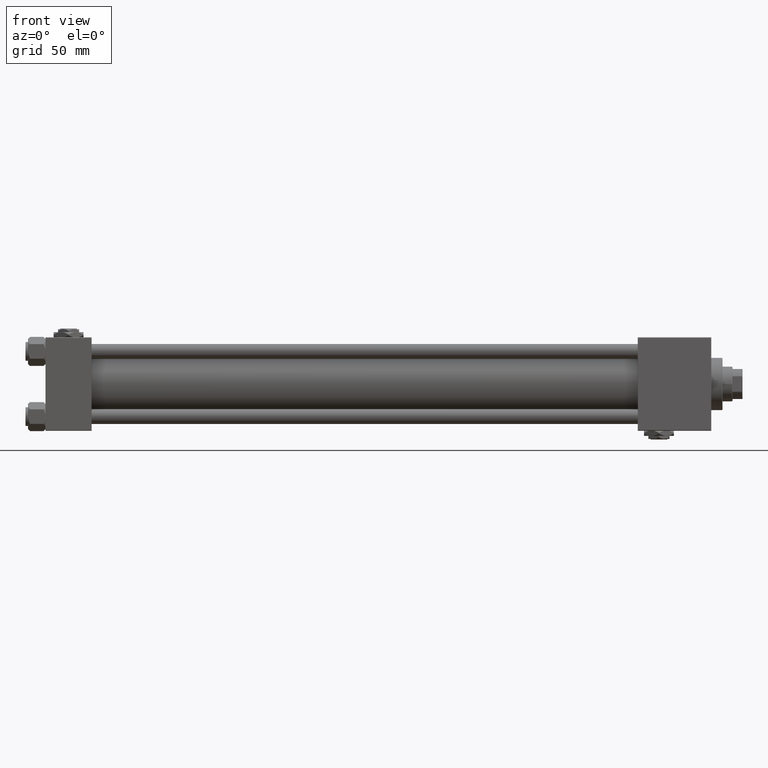
[diagram: clean part render]
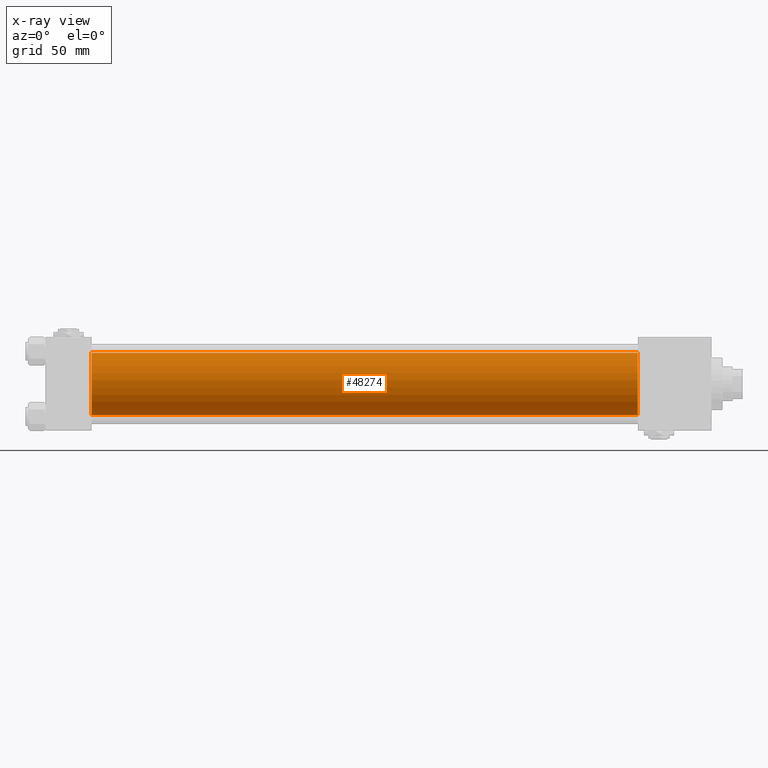
[diagram: x-ray — body ghosted, one internal face saturated and labeled with its STEP entity id]
A machine part, front view, then the same camera in x-ray: the body is ghosted and one INTERNAL B-rep face — a face not visible from any outside direction — is saturated and labeled: STEP entity #48274.
In plain terms, the highlighted cylindrical surface (edge-blend (fillet) strip) has radius 25 mm, axis along (-1, -0, -0).
Its self-contained STEP definition (entity closure, byte-faithful):
#14 = ORIENTED_EDGE ( 'NONE', *, *, #40336, .F. ) ;
#4042 = AXIS2_PLACEMENT_3D ( 'NONE', #31673, #39861, #43315 ) ;
#5023 = CARTESIAN_POINT ( 'NONE',  ( 475.0000000000000000, 4.595317839031724996E-16, -25.00000000000000000 ) ) ;
#5768 = EDGE_CURVE ( 'NONE', #40630, #6925, #9767, .T. ) ;
#5812 = DIRECTION ( 'NONE',  ( -1.000000000000000000, -0.000000000000000000, -0.000000000000000000 ) ) ;
#6589 = CIRCLE ( 'NONE', #4042, 25.00000000000000000 ) ;
#6925 = VERTEX_POINT ( 'NONE', #9968 ) ;
#7916 = DIRECTION ( 'NONE',  ( 1.000000000000000000, 0.000000000000000000, 0.000000000000000000 ) ) ;
#8553 = DIRECTION ( 'NONE',  ( -1.000000000000000000, -0.000000000000000000, -0.000000000000000000 ) ) ;
#9114 = VECTOR ( 'NONE', #27331, 1000.000000000000000 ) ;
#9767 = LINE ( 'NONE', #5023, #13053 ) ;
#9968 = CARTESIAN_POINT ( 'NONE',  ( 37.00000000000000000, 4.595317839031724996E-16, -25.00000000000000000 ) ) ;
#11249 = CARTESIAN_POINT ( 'NONE',  ( 475.0000000000000000, -2.602085213965210642E-15, 25.00000000000000000 ) ) ;
#13053 = VECTOR ( 'NONE', #5812, 1000.000000000000000 ) ;
#13216 = EDGE_CURVE ( 'NONE', #21457, #40630, #6589, .T. ) ;
#18327 = ORIENTED_EDGE ( 'NONE', *, *, #5768, .T. ) ;
#20048 = DIRECTION ( 'NONE',  ( 0.000000000000000000, 0.000000000000000000, -1.000000000000000000 ) ) ;
#21457 = VERTEX_POINT ( 'NONE', #23618 ) ;
#23618 = CARTESIAN_POINT ( 'NONE',  ( 475.0000000000000000, -2.602085213965210642E-15, 25.00000000000000000 ) ) ;
#24619 = CARTESIAN_POINT ( 'NONE',  ( 37.00000000000000000, -2.602085213965210642E-15, 25.00000000000000000 ) ) ;
#27074 = LINE ( 'NONE', #11249, #9114 ) ;
#27331 = DIRECTION ( 'NONE',  ( -1.000000000000000000, -0.000000000000000000, -0.000000000000000000 ) ) ;
#27685 = VERTEX_POINT ( 'NONE', #24619 ) ;
#31457 = ORIENTED_EDGE ( 'NONE', *, *, #13216, .T. ) ;
#31673 = CARTESIAN_POINT ( 'NONE',  ( 475.0000000000000000, -2.602085213965210642E-15, 0.000000000000000000 ) ) ;
#32049 = DIRECTION ( 'NONE',  ( 0.000000000000000000, 0.000000000000000000, 1.000000000000000000 ) ) ;
#36014 = CARTESIAN_POINT ( 'NONE',  ( 475.0000000000000000, -2.602085213965210642E-15, 0.000000000000000000 ) ) ;
#37008 = AXIS2_PLACEMENT_3D ( 'NONE', #36014, #8553, #32049 ) ;
#37418 = CARTESIAN_POINT ( 'NONE',  ( 475.0000000000000000, 4.595317839031724996E-16, -25.00000000000000000 ) ) ;
#37655 = CIRCLE ( 'NONE', #44394, 25.00000000000000000 ) ;
#39861 = DIRECTION ( 'NONE',  ( 1.000000000000000000, 0.000000000000000000, 0.000000000000000000 ) ) ;
#40336 = EDGE_CURVE ( 'NONE', #27685, #6925, #37655, .T. ) ;
#40630 = VERTEX_POINT ( 'NONE', #37418 ) ;
#41316 = FACE_OUTER_BOUND ( 'NONE', #48809, .T. ) ;
#43315 = DIRECTION ( 'NONE',  ( 0.000000000000000000, 0.000000000000000000, -1.000000000000000000 ) ) ;
#44394 = AXIS2_PLACEMENT_3D ( 'NONE', #48859, #7916, #20048 ) ;
#45261 = CYLINDRICAL_SURFACE ( 'NONE', #37008, 25.00000000000000000 ) ;
#48274 = ADVANCED_FACE ( 'NONE', ( #41316 ), #45261, .F. ) ;
#48809 = EDGE_LOOP ( 'NONE', ( #31457, #18327, #14, #52212 ) ) ;
#48859 = CARTESIAN_POINT ( 'NONE',  ( 37.00000000000000000, -2.602085213965210642E-15, 0.000000000000000000 ) ) ;
#50319 = EDGE_CURVE ( 'NONE', #21457, #27685, #27074, .T. ) ;
#52212 = ORIENTED_EDGE ( 'NONE', *, *, #50319, .F. ) ;